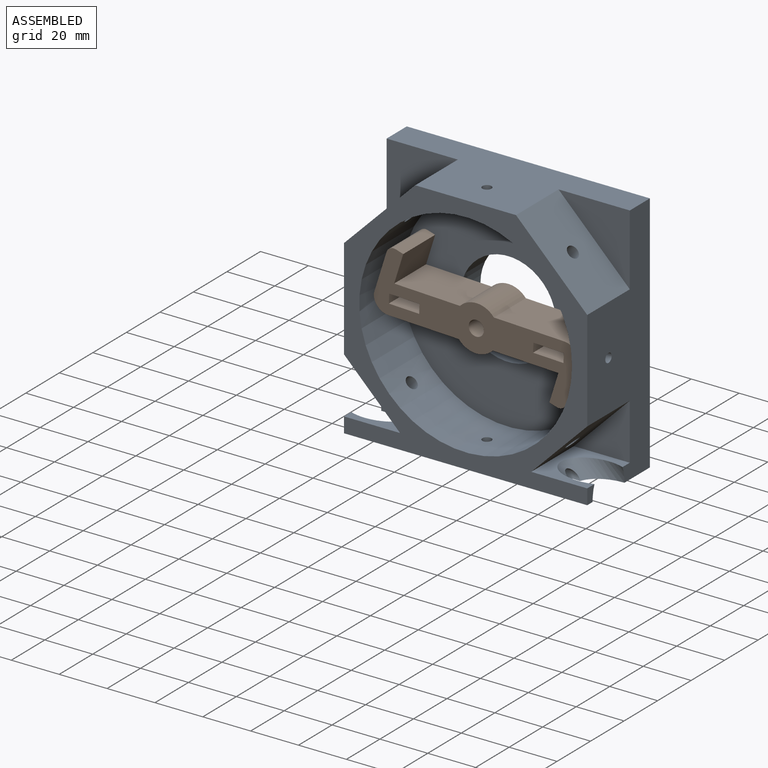
[diagram: assembled view]
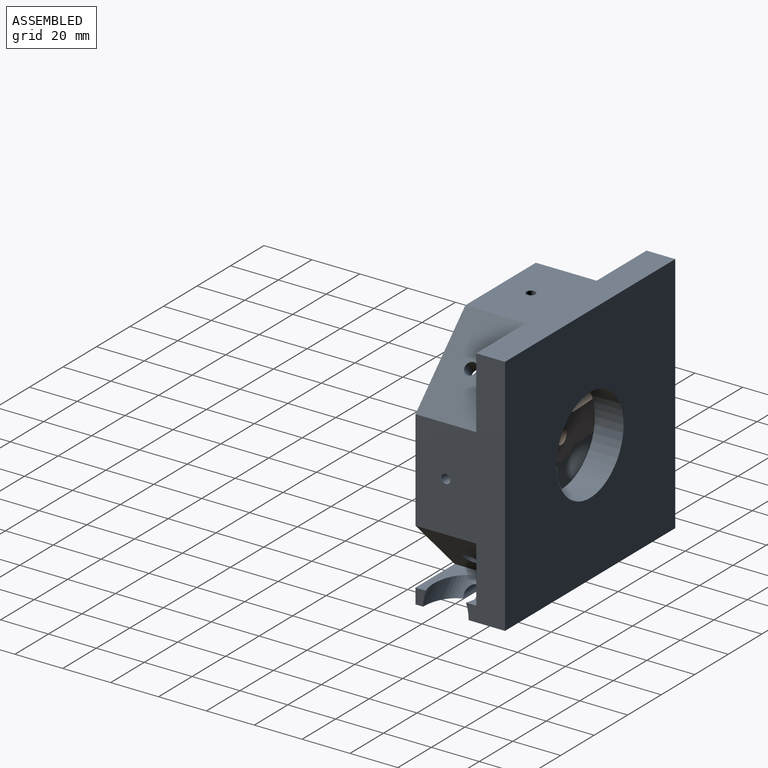
[diagram: assembled view, second angle]
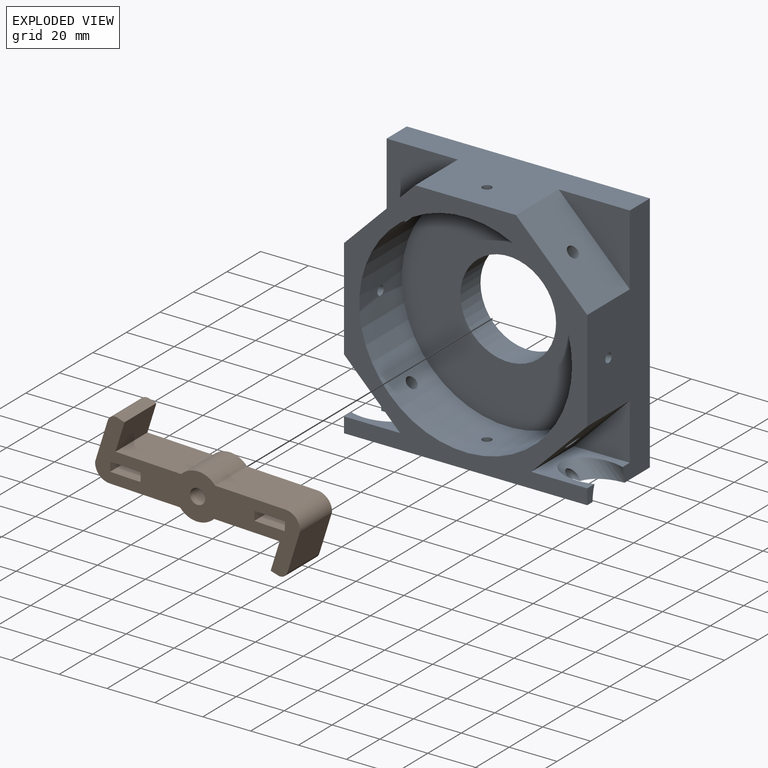
[diagram: exploded view]
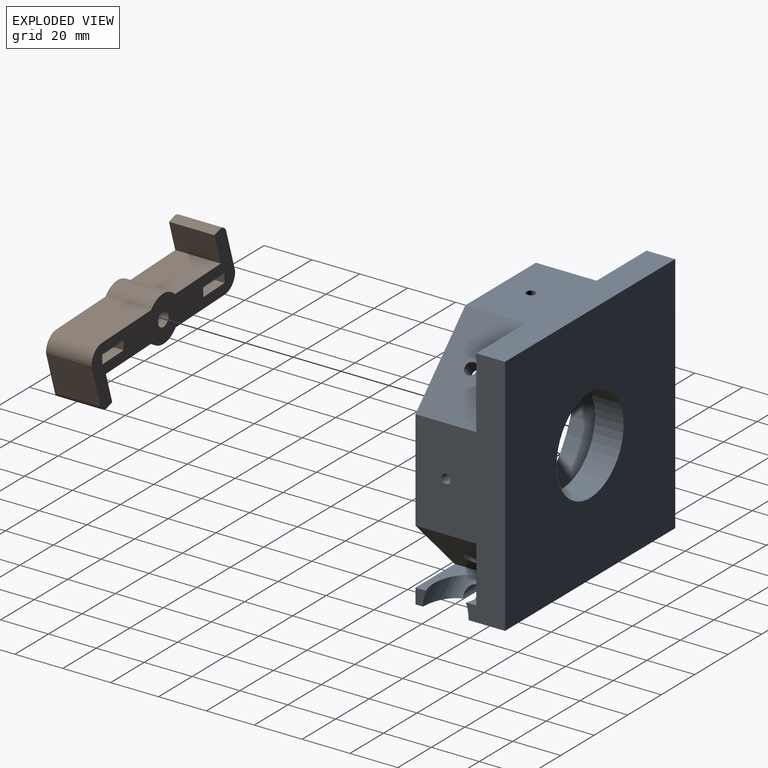
[diagram: exploded view, second angle]
ASSEMBLY  parts=2 mates=2
PART A: 33 faces, bbox 108x37.4x108.3 mm
  f0: plane 101.6x37.4mm, normal (0,0,-1), area 3246.4mm2, adj f1,f2,f5,f9,f13,f20,f23,f24
  f1: plane 101.6x37.4mm, normal (1,0,0), area 2299.2mm2, adj f0,f3,f4,f6,f7,f13,f16,f17
  f2: plane 6.35x4.3mm, normal (-1,0,0), area 22.5mm2, adj f0,f11,f13,f23
  f3: plane 25.4x23.41mm, normal (0,0,1), area 276.7mm2, adj f1,f4,f5,f13,f17,f24
  f4: plane 25.4x23.41mm, normal (0.71,0,-0.71), area 809.2mm2, adj f1,f3,f13,f17,f22
  f5: plane 6.35x4.3mm, normal (1,0,0), area 22.5mm2, adj f0,f3,f13,f24
  f6: plane 29.76x29.76mm, normal (0.71,0,0.71), area 1048.5mm2, adj f1,f7,f13,f16,f31
  f7: plane 101.6x37.4mm, normal (0,0,1), area 2276.7mm2, adj f1,f6,f8,f9,f13,f15,f16,f20
  f8: plane 29.76x29.76mm, normal (-0.71,0,0.71), area 1037.3mm2, adj f7,f9,f13,f15,f21
  f9: plane 101.6x37.4mm, normal (-1,0,0), area 2299.2mm2, adj f0,f7,f8,f10,f11,f13,f14,f15
  f10: plane 25.4x23.41mm, normal (-0.71,0,-0.71), area 820.4mm2, adj f9,f11,f13,f14,f32
  f11: plane 25.4x23.41mm, normal (0,0,1), area 276.7mm2, adj f2,f9,f10,f13,f14,f23
  f12: cylinder r=44.45mm len=88.9mm, axis (0,1,0), area 6943.6mm2, adj f13,f18,f21,f22,f25,f26,f27,f28
  f13: plane 101.6x101.6mm, normal (0,-1,0), area 2681.9mm2, adj f0,f1,f2,f3,f4,f5,f6,f7
  f14: plane 23.41x23.41mm, normal (0,-1,0), area 274mm2, adj f9,f10,f11
  f15: plane 29.76x29.76mm, normal (0,-1,0), area 442.8mm2, adj f7,f8,f9
  f16: plane 29.76x29.76mm, normal (0,-1,0), area 442.8mm2, adj f1,f6,f7
  f17: plane 23.41x23.41mm, normal (0,-1,0), area 274mm2, adj f1,f3,f4
  f18: plane 88.9x88.9mm, normal (0,-1,0), area 4950.5mm2, adj f12,f19
  f19: cylinder r=20mm len=40mm, axis (0,-1,0), area 1508mm2, adj f18,f20
  f20: plane 101.6x101.6mm, normal (0,1,0), area 9065.9mm2, adj f0,f1,f7,f9,f19
  f21: cylinder r=3.17mm len=9.06mm, axis (-0.71,0,0.71), area 127.8mm2, adj f8,f12
  f22: cylinder r=3.17mm len=9.06mm, axis (-0.71,0,0.71), area 127.8mm2, adj f4,f12
  f23: cylinder r=9.53mm len=23.04mm, axis (0.71,0,0.71), area 309.8mm2, adj f0,f2,f9,f11
  f24: cylinder r=9.53mm len=23.04mm, axis (-0.71,0,0.71), area 284.2mm2, adj f0,f1,f3,f5,f29
  f25: cylinder r=1.91mm len=3.81mm, axis (0,0,1), area 30.9mm2, adj f12,f29
  f26: cylinder r=1.91mm len=6.39mm, axis (0,0,1), area 76.3mm2, adj f7,f12
  f27: cylinder r=1.91mm len=6.39mm, axis (-1,0,0), area 76.5mm2, adj f9,f12
  f28: cylinder r=1.91mm len=6.39mm, axis (-1,0,0), area 76.1mm2, adj f1,f12
  f29: cylinder r=2.54mm len=39.63mm, axis (1,0,0), area 420.3mm2, adj f0,f24,f25,f30
  f30: plane 5.08x4.22mm, normal (1,0,0), area 18mm2, adj f0,f29
  f31: cylinder r=2.55mm len=8.15mm, axis (0.71,0,0.71), area 102.4mm2, adj f6,f12
  f32: cylinder r=2.55mm len=8.15mm, axis (0.71,0,0.71), area 102.4mm2, adj f10,f12
PART B: 27 faces, bbox 39.1x85.7x19.1 mm
  f0: plane 29.41x19.05mm, normal (-1,0,0), area 560.3mm2, adj f1,f15,f17,f18
  f1: cylinder r=9.53mm len=19.05mm, axis (0,0,-1), area 305.2mm2, adj f0,f2,f17,f18
  f2: plane 27.49x19.05mm, normal (-1,0,0), area 523.6mm2, adj f1,f3,f17,f18
  f3: plane 19.05x12.27mm, normal (0.26,0.97,0), area 241.9mm2, adj f2,f4,f17,f18
  f4: plane 19.05x3.07mm, normal (-0.97,0.26,0), area 60.5mm2, adj f3,f5,f17,f18
  f5: cylinder r=3.17mm len=19.05mm, axis (0,0,-1), area 95mm2, adj f4,f6,f17,f18
  f6: plane 19.05x17.19mm, normal (-0.26,-0.97,0), area 339.1mm2, adj f5,f7,f17,f18
  f7: cylinder r=6.35mm len=19.05mm, axis (0,0,-1), area 190mm2, adj f6,f8,f17,f18
  f8: plane 29.41x19.05mm, normal (1,0,0), area 560.3mm2, adj f7,f9,f17,f18
  f9: cylinder r=9.53mm len=19.05mm, axis (0,0,-1), area 305.2mm2, adj f8,f10,f17,f18
  f10: plane 27.49x19.05mm, normal (1,0,0), area 523.6mm2, adj f9,f11,f17,f18
  f11: plane 19.05x12.27mm, normal (-0.26,-0.97,0), area 241.9mm2, adj f10,f12,f17,f18
  f12: plane 19.05x3.07mm, normal (0.97,-0.26,0), area 60.5mm2, adj f11,f13,f17,f18
  f13: cylinder r=3.17mm len=19.05mm, axis (0,0,-1), area 95mm2, adj f12,f14,f17,f18
  f14: plane 19.05x17.19mm, normal (0.26,0.97,0), area 339.1mm2, adj f13,f15,f17,f18
  f15: cylinder r=6.35mm len=19.05mm, axis (0,0,-1), area 190mm2, adj f0,f14,f17,f18
  f16: cylinder r=3.17mm len=19.05mm, axis (0,0,-1), area 380mm2, adj f17,f18
  f17: plane 85.73x39.09mm, normal (0,0,1), area 1162.4mm2, adj f0,f1,f2,f3,f4,f5,f6,f7
  f18: plane 85.73x39.09mm, normal (0,0,-1), area 1162.4mm2, adj f0,f1,f2,f3,f4,f5,f6,f7
  f19: plane 19.05x3.81mm, normal (0,1,0), area 72.6mm2, adj f17,f18,f20,f21
  f20: plane 19.05x12.7mm, normal (1,0,0), area 241.9mm2, adj f17,f18,f19,f22
  f21: plane 19.05x12.7mm, normal (-1,0,0), area 241.9mm2, adj f17,f18,f19,f22
  f22: plane 19.05x3.81mm, normal (0,-1,0), area 72.6mm2, adj f17,f18,f20,f21
  f23: plane 19.05x3.81mm, normal (0,1,0), area 72.6mm2, adj f17,f18,f24,f25
  f24: plane 19.05x12.7mm, normal (1,0,0), area 241.9mm2, adj f17,f18,f23,f26
  f25: plane 19.05x12.7mm, normal (-1,0,0), area 241.9mm2, adj f17,f18,f23,f26
  f26: plane 19.05x3.81mm, normal (0,-1,0), area 72.6mm2, adj f17,f18,f24,f25
PLACE A t=(-58.55,-22.69,40.58)mm fixed
PLACE B rot(axis=(0.59,-0.57,0.57),118.7deg) t=(-22.33,-22.69,32.77)mm
MATE cylindrical B.f1 <-> A.f12  axis (0,1,0) through (-58.55,-41.74,40.58)mm
MATE planar B.f1 <-> A.f12  axis (0,1,0) through (-58.55,-22.69,40.58)mm
